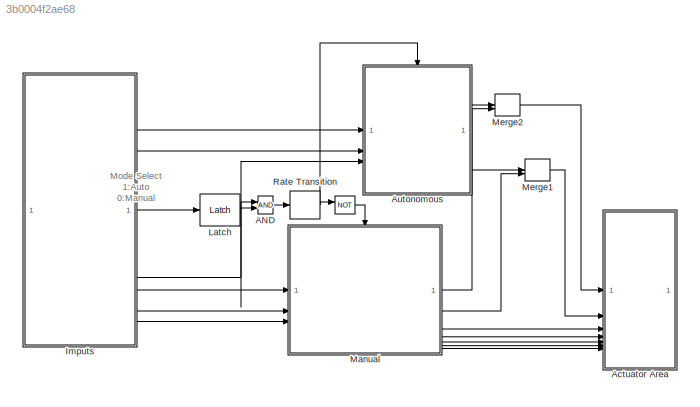
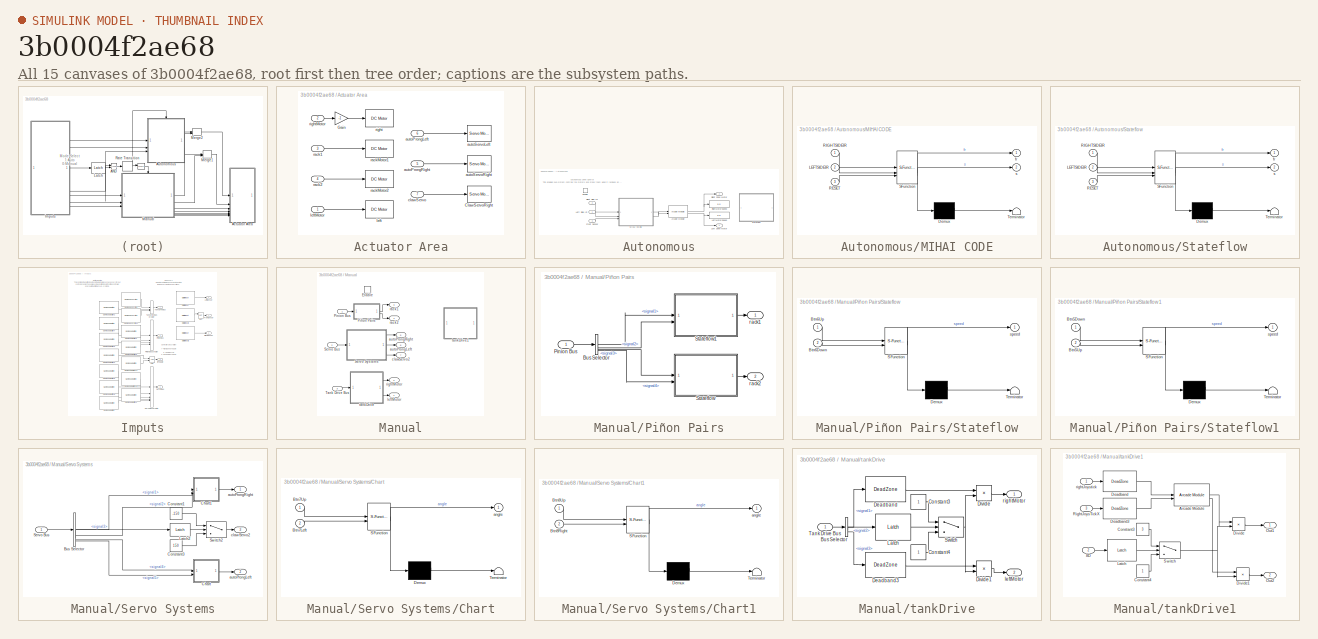
[diagram: thumbnail index - all 15 canvases of the model, root first then tree order]
MODEL slx_3b0004f2ae68
KIND model
CONFIG AbsTol = auto
CONFIG EnableMultiTasking = off
CONFIG FixedStep = auto
CONFIG MaxStep = auto
CONFIG MinStep = auto
CONFIG RelTol = 1e-3
CONFIG SampleTimeConstraint = Unconstrained
CONFIG SolverName = VariableStepAuto
CONFIG StartTime = 0.0
CONFIG StopTime = 10.0
BLOCK [Logic]  
  AllPortsSameDT = off
  IconShape = distinctive
  Operator = NOT
  OutDataTypeStr = boolean
BLOCK [Logic] AND
  AllPortsSameDT = off
  IconShape = distinctive
  OutDataTypeStr = boolean
BLOCK [SubSystem] Actuator Area
BLOCK [Reference] Actuator Area/ClawServoRight  REF=vexarmcortexlib/Actuators/Servo Motor
  SourceBlock = vexarmcortexlib/Actuators/Servo Motor
  SourceType = Servo Motor
BLOCK [Gain] Actuator Area/Gain
  Gain = -1
BLOCK [Inport] Actuator Area/autoProngLeft
  Port = 6
BLOCK [Inport] Actuator Area/autoProngRight
  Port = 5
BLOCK [Reference] Actuator Area/autoServoLeft  REF=vexarmcortexlib/Actuators/Servo Motor
  SourceBlock = vexarmcortexlib/Actuators/Servo Motor
  SourceType = Servo Motor
BLOCK [Reference] Actuator Area/autoServoRight  REF=vexarmcortexlib/Actuators/Servo Motor
  SourceBlock = vexarmcortexlib/Actuators/Servo Motor
  SourceType = Servo Motor
BLOCK [Inport] Actuator Area/clawServo
  Port = 7
BLOCK [Reference] Actuator Area/left  REF=vexarmcortexlib/Actuators/DC Motor
  SourceBlock = vexarmcortexlib/Actuators/DC Motor
  SourceType = DC Motor
BLOCK [Inport] Actuator Area/leftMotor
BLOCK [Inport] Actuator Area/rack1
  Port = 3
BLOCK [Inport] Actuator Area/rack2
  Port = 4
BLOCK [Reference] Actuator Area/rackMotor1  REF=vexarmcortexlib/Actuators/DC Motor
  SourceBlock = vexarmcortexlib/Actuators/DC Motor
  SourceType = DC Motor
BLOCK [Reference] Actuator Area/rackMotor2  REF=vexarmcortexlib/Actuators/DC Motor
  SourceBlock = vexarmcortexlib/Actuators/DC Motor
  SourceType = DC Motor
BLOCK [Reference] Actuator Area/right  REF=vexarmcortexlib/Actuators/DC Motor
  SourceBlock = vexarmcortexlib/Actuators/DC Motor
  SourceType = DC Motor
BLOCK [Inport] Actuator Area/rightMotor
  Port = 2
BLOCK [SubSystem] Autonomous
  TreatAsAtomicUnit = on
BLOCK [Reference] Autonomous/Arcade Module  REF=vexcommonlib/Arcade Module
  SourceBlock = vexcommonlib/Arcade Module
  SourceType = Arcade-2 Motors Module
BLOCK [EnablePort] Autonomous/Enable
  StatesWhenEnabling = reset
BLOCK [Inport] Autonomous/Front Sensor
  Port = 3
BLOCK [Outport] Autonomous/Left Drive Motor
BLOCK [Inport] Autonomous/Left Side IR
BLOCK [Display] Autonomous/LeftMotorSpeed
  Decimation = 1
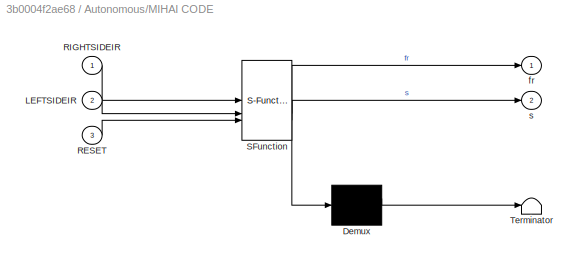
BLOCK [SubSystem] Autonomous/MIHAI CODE
  ErrorFcn = Stateflow.Translate.translate
  PermitHierarchicalResolution = ExplicitOnly
  SFBlockType = Chart
  TreatAsAtomicUnit = on
BLOCK [Demux] Autonomous/MIHAI CODE/ Demux 
  Outputs = 1
BLOCK [S-Function] Autonomous/MIHAI CODE/ SFunction 
  EnableBusSupport = on
  FunctionName = sf_sfun
  PortCounts = [3 3]
  SFcnIsStateOwnerBlock = off
  SFunctionDeploymentMode = off
  Tag = Stateflow S-Function 2
BLOCK [Terminator] Autonomous/MIHAI CODE/ Terminator 
BLOCK [Inport] Autonomous/MIHAI CODE/LEFTSIDEIR
  Port = 2
BLOCK [Inport] Autonomous/MIHAI CODE/RESET
  Port = 3
BLOCK [Inport] Autonomous/MIHAI CODE/RIGHTSIDEIR
BLOCK [Outport] Autonomous/MIHAI CODE/fr
BLOCK [Outport] Autonomous/MIHAI CODE/s
  Port = 2
BLOCK [Outport] Autonomous/Right Drive Motor
  Port = 2
BLOCK [Inport] Autonomous/Right Side IR
  Port = 2
BLOCK [Display] Autonomous/RightMotorSpeed
  Decimation = 1
BLOCK [SubSystem] Autonomous/Stateflow
  Commented = on
  ErrorFcn = Stateflow.Translate.translate
  PermitHierarchicalResolution = ExplicitOnly
  SFBlockType = Chart
  TreatAsAtomicUnit = on
BLOCK [Demux] Autonomous/Stateflow/ Demux 
  Outputs = 1
BLOCK [S-Function] Autonomous/Stateflow/ SFunction 
  EnableBusSupport = on
  FunctionName = sf_sfun
  PortCounts = [3 3]
  SFcnIsStateOwnerBlock = off
  SFunctionDeploymentMode = off
  Tag = Stateflow S-Function 8
BLOCK [Terminator] Autonomous/Stateflow/ Terminator 
BLOCK [Inport] Autonomous/Stateflow/LEFTSIDEIR
  Port = 2
BLOCK [Inport] Autonomous/Stateflow/RESET
  Port = 3
BLOCK [Inport] Autonomous/Stateflow/RIGHTSIDEIR
BLOCK [Outport] Autonomous/Stateflow/fr
BLOCK [Outport] Autonomous/Stateflow/s
  Port = 2
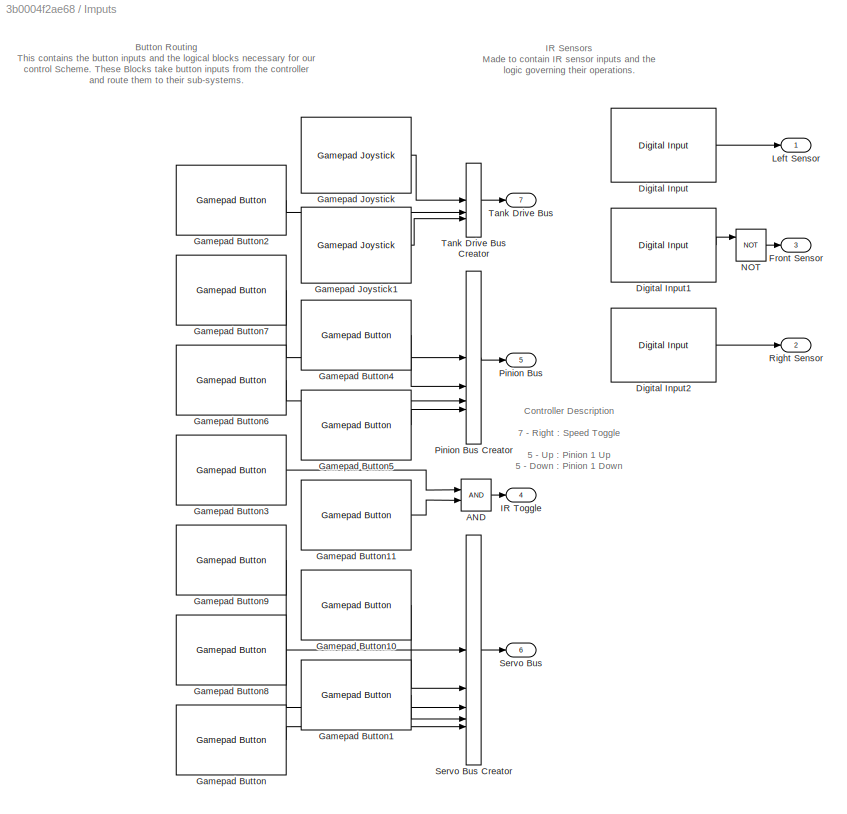
BLOCK [SubSystem] Imputs
BLOCK [Logic] Imputs/AND
  AllPortsSameDT = off
  IconShape = distinctive
  OutDataTypeStr = boolean
BLOCK [Reference] Imputs/Digital Input  REF=vexarmcortexlib/Sensors/Digital Input
  SourceBlock = vexarmcortexlib/Sensors/Digital Input
  SourceType = Digital Input
BLOCK [Reference] Imputs/Digital Input1  REF=vexarmcortexlib/Sensors/Digital Input
  SourceBlock = vexarmcortexlib/Sensors/Digital Input
  SourceType = Digital Input
BLOCK [Reference] Imputs/Digital Input2  REF=vexarmcortexlib/Sensors/Digital Input
  SourceBlock = vexarmcortexlib/Sensors/Digital Input
  SourceType = Digital Input
BLOCK [Outport] Imputs/Front Sensor
  Port = 3
BLOCK [Reference] Imputs/Gamepad Button  REF=vexarmcortexlib/Gamepad/Gamepad Button
  SourceBlock = vexarmcortexlib/Gamepad/Gamepad Button
  SourceType = Gamepad Button
BLOCK [Reference] Imputs/Gamepad Button1  REF=vexarmcortexlib/Gamepad/Gamepad Button
  SourceBlock = vexarmcortexlib/Gamepad/Gamepad Button
  SourceType = Gamepad Button
BLOCK [Reference] Imputs/Gamepad Button10  REF=vexarmcortexlib/Gamepad/Gamepad Button
  SourceBlock = vexarmcortexlib/Gamepad/Gamepad Button
  SourceType = Gamepad Button
BLOCK [Reference] Imputs/Gamepad Button11  REF=vexarmcortexlib/Gamepad/Gamepad Button
  SourceBlock = vexarmcortexlib/Gamepad/Gamepad Button
  SourceType = Gamepad Button
BLOCK [Reference] Imputs/Gamepad Button2  REF=vexarmcortexlib/Gamepad/Gamepad Button
  SourceBlock = vexarmcortexlib/Gamepad/Gamepad Button
  SourceType = Gamepad Button
BLOCK [Reference] Imputs/Gamepad Button3  REF=vexarmcortexlib/Gamepad/Gamepad Button
  SourceBlock = vexarmcortexlib/Gamepad/Gamepad Button
  SourceType = Gamepad Button
BLOCK [Reference] Imputs/Gamepad Button4  REF=vexarmcortexlib/Gamepad/Gamepad Button
  SourceBlock = vexarmcortexlib/Gamepad/Gamepad Button
  SourceType = Gamepad Button
BLOCK [Reference] Imputs/Gamepad Button5  REF=vexarmcortexlib/Gamepad/Gamepad Button
  SourceBlock = vexarmcortexlib/Gamepad/Gamepad Button
  SourceType = Gamepad Button
BLOCK [Reference] Imputs/Gamepad Button6  REF=vexarmcortexlib/Gamepad/Gamepad Button
  SourceBlock = vexarmcortexlib/Gamepad/Gamepad Button
  SourceType = Gamepad Button
BLOCK [Reference] Imputs/Gamepad Button7  REF=vexarmcortexlib/Gamepad/Gamepad Button
  SourceBlock = vexarmcortexlib/Gamepad/Gamepad Button
  SourceType = Gamepad Button
BLOCK [Reference] Imputs/Gamepad Button8  REF=vexarmcortexlib/Gamepad/Gamepad Button
  SourceBlock = vexarmcortexlib/Gamepad/Gamepad Button
  SourceType = Gamepad Button
BLOCK [Reference] Imputs/Gamepad Button9  REF=vexarmcortexlib/Gamepad/Gamepad Button
  SourceBlock = vexarmcortexlib/Gamepad/Gamepad Button
  SourceType = Gamepad Button
BLOCK [Reference] Imputs/Gamepad Joystick  REF=vexarmcortexlib/Gamepad/Gamepad Joystick
  SourceBlock = vexarmcortexlib/Gamepad/Gamepad Joystick
  SourceType = Gamepad Joystick
BLOCK [Reference] Imputs/Gamepad Joystick1  REF=vexarmcortexlib/Gamepad/Gamepad Joystick
  SourceBlock = vexarmcortexlib/Gamepad/Gamepad Joystick
  SourceType = Gamepad Joystick
BLOCK [Outport] Imputs/IR Toggle
  Port = 4
BLOCK [Outport] Imputs/Left Sensor
BLOCK [Logic] Imputs/NOT
  AllPortsSameDT = off
  IconShape = distinctive
  Inputs = 3
  Operator = NOT
  OutDataTypeStr = boolean
BLOCK [Outport] Imputs/Pinion Bus
  Port = 5
BLOCK [BusCreator] Imputs/Pinion Bus Creator
  DisplayOption = bar
  InheritFromInputs = on
  Inputs = 4
BLOCK [Outport] Imputs/Right Sensor
  Port = 2
BLOCK [Outport] Imputs/Servo Bus
  Port = 6
BLOCK [BusCreator] Imputs/Servo Bus Creator
  DisplayOption = bar
  InheritFromInputs = on
  Inputs = 5
BLOCK [Outport] Imputs/Tank Drive Bus
  Port = 7
BLOCK [BusCreator] Imputs/Tank Drive Bus Creator
  DisplayOption = bar
  InheritFromInputs = on
  Inputs = 3
BLOCK [Reference] Latch  REF=vexcommonlib/Latch
  SourceBlock = vexcommonlib/Latch
  SourceType = Latch
BLOCK [SubSystem] Manual
  TreatAsAtomicUnit = on
BLOCK [EnablePort] Manual/Enable
BLOCK [Inport] Manual/Pinion Bus
BLOCK [SubSystem] Manual/Piñon Pairs
BLOCK [BusSelector] Manual/Piñon Pairs/Bus Selector
  OutputSignals = signal1,signal2,signal3,signal4
BLOCK [Inport] Manual/Piñon Pairs/Pinion Bus
BLOCK [SubSystem] Manual/Piñon Pairs/Stateflow
  ErrorFcn = Stateflow.Translate.translate
  PermitHierarchicalResolution = ExplicitOnly
  SFBlockType = Chart
  TreatAsAtomicUnit = on
BLOCK [Demux] Manual/Piñon Pairs/Stateflow/ Demux 
  Outputs = 1
BLOCK [S-Function] Manual/Piñon Pairs/Stateflow/ SFunction 
  EnableBusSupport = on
  FunctionName = sf_sfun
  PortCounts = [2 2]
  SFcnIsStateOwnerBlock = off
  SFunctionDeploymentMode = off
  Tag = Stateflow S-Function 4
BLOCK [Terminator] Manual/Piñon Pairs/Stateflow/ Terminator 
BLOCK [Inport] Manual/Piñon Pairs/Stateflow/Btn6Down
  Port = 2
BLOCK [Inport] Manual/Piñon Pairs/Stateflow/Btn6Up
BLOCK [Outport] Manual/Piñon Pairs/Stateflow/speed
BLOCK [SubSystem] Manual/Piñon Pairs/Stateflow1
  ErrorFcn = Stateflow.Translate.translate
  PermitHierarchicalResolution = ExplicitOnly
  SFBlockType = Chart
  TreatAsAtomicUnit = on
BLOCK [Demux] Manual/Piñon Pairs/Stateflow1/ Demux 
  Outputs = 1
BLOCK [S-Function] Manual/Piñon Pairs/Stateflow1/ SFunction 
  EnableBusSupport = on
  FunctionName = sf_sfun
  PortCounts = [2 2]
  SFcnIsStateOwnerBlock = off
  SFunctionDeploymentMode = off
  Tag = Stateflow S-Function 5
BLOCK [Terminator] Manual/Piñon Pairs/Stateflow1/ Terminator 
BLOCK [Inport] Manual/Piñon Pairs/Stateflow1/Btn5Down
BLOCK [Inport] Manual/Piñon Pairs/Stateflow1/Btn5Up
  Port = 2
BLOCK [Outport] Manual/Piñon Pairs/Stateflow1/speed
BLOCK [Outport] Manual/Piñon Pairs/rack1
BLOCK [Outport] Manual/Piñon Pairs/rack2
  Port = 2
BLOCK [Inport] Manual/Servo Bus
  Port = 2
BLOCK [SubSystem] Manual/Servo Systems
BLOCK [BusSelector] Manual/Servo Systems/Bus Selector
  OutputSignals = signal1,signal2,signal3,signal4,signal5
BLOCK [SubSystem] Manual/Servo Systems/Chart
  ErrorFcn = Stateflow.Translate.translate
  PermitHierarchicalResolution = ExplicitOnly
  SFBlockType = Chart
  TreatAsAtomicUnit = on
BLOCK [Demux] Manual/Servo Systems/Chart/ Demux 
  Outputs = 1
BLOCK [S-Function] Manual/Servo Systems/Chart/ SFunction 
  EnableBusSupport = on
  FunctionName = sf_sfun
  PortCounts = [2 2]
  SFcnIsStateOwnerBlock = off
  SFunctionDeploymentMode = off
  Tag = Stateflow S-Function 3
BLOCK [Terminator] Manual/Servo Systems/Chart/ Terminator 
BLOCK [Inport] Manual/Servo Systems/Chart/Btn7Left
  Port = 2
BLOCK [Inport] Manual/Servo Systems/Chart/Btn7Up
BLOCK [Outport] Manual/Servo Systems/Chart/angle
BLOCK [SubSystem] Manual/Servo Systems/Chart1
  ErrorFcn = Stateflow.Translate.translate
  PermitHierarchicalResolution = ExplicitOnly
  SFBlockType = Chart
  TreatAsAtomicUnit = on
BLOCK [Demux] Manual/Servo Systems/Chart1/ Demux 
  Outputs = 1
BLOCK [S-Function] Manual/Servo Systems/Chart1/ SFunction 
  EnableBusSupport = on
  FunctionName = sf_sfun
  PortCounts = [2 2]
  SFcnIsStateOwnerBlock = off
  SFunctionDeploymentMode = off
  Tag = Stateflow S-Function 1
BLOCK [Terminator] Manual/Servo Systems/Chart1/ Terminator 
BLOCK [Inport] Manual/Servo Systems/Chart1/Btn8Right
  Port = 2
BLOCK [Inport] Manual/Servo Systems/Chart1/Btn8Up
BLOCK [Outport] Manual/Servo Systems/Chart1/angle
BLOCK [Constant] Manual/Servo Systems/Constant1
  Value = -150
BLOCK [Constant] Manual/Servo Systems/Constant3
  Value = 150
BLOCK [Reference] Manual/Servo Systems/Latch2  REF=vexcommonlib/Latch
  LibrarySourceBlock = vexarmcortexlib/Utilities/Latch
  SourceBlock = vexcommonlib/Latch
  SourceType = Latch
BLOCK [Inport] Manual/Servo Systems/Servo Bus
BLOCK [Switch] Manual/Servo Systems/Switch2
  Criteria = u2 > Threshold
  InputSameDT = off
  SaturateOnIntegerOverflow = off
BLOCK [Outport] Manual/Servo Systems/autoProngLeft
  Port = 2
BLOCK [Outport] Manual/Servo Systems/autoProngRight
BLOCK [Outport] Manual/Servo Systems/clawServo2
  Port = 3
BLOCK [Inport] Manual/Tank Drive Bus
  Port = 3
BLOCK [Outport] Manual/autoProngLeft
  Port = 6
BLOCK [Outport] Manual/autoProngRight
  Port = 5
BLOCK [Outport] Manual/clawServo2
  Port = 7
BLOCK [Outport] Manual/leftMotor
BLOCK [Outport] Manual/rack1
  Port = 3
BLOCK [Outport] Manual/rack2
  Port = 4
BLOCK [Outport] Manual/rightMotor
  Port = 2
BLOCK [SubSystem] Manual/tankDrive
BLOCK [BusSelector] Manual/tankDrive/Bus Selector
  OutputSignals = signal1,signal2,signal3
BLOCK [Constant] Manual/tankDrive/Constant3
BLOCK [Constant] Manual/tankDrive/Constant4
BLOCK [DeadZone] Manual/tankDrive/Deadband
  LowerValue = -9
  UpperValue = 9
BLOCK [DeadZone] Manual/tankDrive/Deadband3
  LowerValue = -9
  UpperValue = 9
BLOCK [Product] Manual/tankDrive/Divide
  Inputs = */
BLOCK [Product] Manual/tankDrive/Divide1
  Inputs = */
BLOCK [Reference] Manual/tankDrive/Latch  REF=vexcommonlib/Latch
  LibrarySourceBlock = vexarmcortexlib/Utilities/Latch
  SourceBlock = vexcommonlib/Latch
  SourceType = Latch
BLOCK [Switch] Manual/tankDrive/Switch
  Criteria = u2 > Threshold
  InputSameDT = off
  SaturateOnIntegerOverflow = off
BLOCK [Inport] Manual/tankDrive/Tank Drive Bus
BLOCK [Outport] Manual/tankDrive/leftMotor
  Port = 2
BLOCK [Outport] Manual/tankDrive/rightMotor
BLOCK [SubSystem] Manual/tankDrive1
  Commented = on
BLOCK [Inport] Manual/tankDrive1/8D 
  Port = 2
BLOCK [Reference] Manual/tankDrive1/Arcade Module  REF=vexcommonlib/Arcade Module
  SourceBlock = vexcommonlib/Arcade Module
  SourceType = Arcade-2 Motors Module
BLOCK [Constant] Manual/tankDrive1/Constant3
  Value = 3
BLOCK [Constant] Manual/tankDrive1/Constant4
BLOCK [DeadZone] Manual/tankDrive1/Deadband
  LowerValue = -9
  UpperValue = 9
BLOCK [DeadZone] Manual/tankDrive1/Deadband3
  LowerValue = -9
  UpperValue = 9
BLOCK [Product] Manual/tankDrive1/Divide
  Inputs = */
BLOCK [Product] Manual/tankDrive1/Divide1
  Inputs = */
BLOCK [Reference] Manual/tankDrive1/Latch  REF=vexcommonlib/Latch
  LibrarySourceBlock = vexarmcortexlib/Utilities/Latch
  SourceBlock = vexcommonlib/Latch
  SourceType = Latch
BLOCK [Outport] Manual/tankDrive1/Out1
BLOCK [Outport] Manual/tankDrive1/Out2
  Port = 2
BLOCK [Inport] Manual/tankDrive1/RightJoysTickX
  Port = 3
BLOCK [Switch] Manual/tankDrive1/Switch
  Criteria = u2 > Threshold
  InputSameDT = off
  SaturateOnIntegerOverflow = off
BLOCK [Inport] Manual/tankDrive1/rightJoystick
BLOCK [Merge] Merge1
BLOCK [Merge] Merge2
BLOCK [RateTransition] Rate Transition
ANNOTATION (root): Manual Subsystem This contains the pieces
ANNOTATION (root): Mode Select 1:Auto 0:Manual
ANNOTATION Autonomous: Autonomous Drive Control This enabled sub-system controls the motors and stops them when it receives an input of 0 from the Front IR sensor.
ANNOTATION Imputs: Button Routing This contains the button inputs and the logical blocks necessary for our control Scheme. These Blocks take button inputs from the controller and route them to their sub-systems.
ANNOTATION Imputs: Controller Description 7 - Right : Speed Toggle 5 - Up : Pinion 1 Up 5 - Down : Pinion 1 Down 6 - Up : Pinion 2 Up 6 - Down : Pinion 2 Down 7 - Down : Auto Toggle 8 - Down : Auto Toggle 8 - Up :
ANNOTATION Imputs: IR Sensors Made to contain IR sensor inputs and the logic governing their operations.
LINE  :1 -> Manual:enable
LINE AND:1 -> Rate Transition:1
LINE Actuator Area/Gain:1 -> Actuator Area/right:1
LINE Actuator Area/autoProngLeft:1 -> Actuator Area/autoServoLeft:1
LINE Actuator Area/autoProngRight:1 -> Actuator Area/autoServoRight:1
LINE Actuator Area/clawServo:1 -> Actuator Area/ClawServoRight:1
LINE Actuator Area/leftMotor:1 -> Actuator Area/left:1
LINE Actuator Area/rack1:1 -> Actuator Area/rackMotor1:1
LINE Actuator Area/rack2:1 -> Actuator Area/rackMotor2:1
LINE Actuator Area/rightMotor:1 -> Actuator Area/Gain:1
NET Autonomous/Arcade Module:1 -> Autonomous/Right Drive Motor:1, Autonomous/RightMotorSpeed:1
NET Autonomous/Arcade Module:2 -> Autonomous/Left Drive Motor:1, Autonomous/LeftMotorSpeed:1
LINE Autonomous/Front Sensor:1 -> Autonomous/MIHAI CODE:3
LINE Autonomous/Left Side IR:1 -> Autonomous/MIHAI CODE:2
LINE Autonomous/MIHAI CODE:1 -> Autonomous/Arcade Module:1
LINE Autonomous/MIHAI CODE:2 -> Autonomous/Arcade Module:2
LINE Autonomous/Right Side IR:1 -> Autonomous/MIHAI CODE:1
LINE Autonomous:1 -> Merge2:1
LINE Autonomous:2 -> Merge1:1
LINE Imputs/AND:1 -> Imputs/IR Toggle:1
LINE Imputs/Digital Input1:1 -> Imputs/NOT:1
LINE Imputs/Digital Input2:1 -> Imputs/Right Sensor:1
LINE Imputs/Digital Input:1 -> Imputs/Left Sensor:1
LINE Imputs/Gamepad Button10:1 -> Imputs/Servo Bus Creator:2
LINE Imputs/Gamepad Button11:1 -> Imputs/AND:2
LINE Imputs/Gamepad Button1:1 -> Imputs/Servo Bus Creator:4
LINE Imputs/Gamepad Button2:1 -> Imputs/Tank Drive Bus Creator:2
LINE Imputs/Gamepad Button3:1 -> Imputs/AND:1
LINE Imputs/Gamepad Button4:1 -> Imputs/Pinion Bus Creator:2
LINE Imputs/Gamepad Button5:1 -> Imputs/Pinion Bus Creator:4
LINE Imputs/Gamepad Button6:1 -> Imputs/Pinion Bus Creator:3
LINE Imputs/Gamepad Button7:1 -> Imputs/Pinion Bus Creator:1
LINE Imputs/Gamepad Button8:1 -> Imputs/Servo Bus Creator:3
LINE Imputs/Gamepad Button9:1 -> Imputs/Servo Bus Creator:1
LINE Imputs/Gamepad Button:1 -> Imputs/Servo Bus Creator:5
LINE Imputs/Gamepad Joystick1:1 -> Imputs/Tank Drive Bus Creator:3
LINE Imputs/Gamepad Joystick:1 -> Imputs/Tank Drive Bus Creator:1
LINE Imputs/NOT:1 -> Imputs/Front Sensor:1
LINE Imputs/Pinion Bus Creator:1 -> Imputs/Pinion Bus:1
LINE Imputs/Servo Bus Creator:1 -> Imputs/Servo Bus:1
LINE Imputs/Tank Drive Bus Creator:1 -> Imputs/Tank Drive Bus:1
LINE Imputs:1 -> Autonomous:1
LINE Imputs:2 -> Autonomous:2
NET Imputs:3 -> AND:1, Autonomous:3
LINE Imputs:4 -> Latch:1
LINE Imputs:5 -> Manual:1
LINE Imputs:6 -> Manual:2
LINE Imputs:7 -> Manual:3
LINE Latch:1 -> AND:2
LINE Manual/Pinion Bus:1 -> Manual/Piñon Pairs:1
LINE Manual/Piñon Pairs/Bus Selector:1 -> Manual/Piñon Pairs/Stateflow1:1
LINE Manual/Piñon Pairs/Bus Selector:2 -> Manual/Piñon Pairs/Stateflow1:2
LINE Manual/Piñon Pairs/Bus Selector:3 -> Manual/Piñon Pairs/Stateflow:1
LINE Manual/Piñon Pairs/Bus Selector:4 -> Manual/Piñon Pairs/Stateflow:2
LINE Manual/Piñon Pairs/Pinion Bus:1 -> Manual/Piñon Pairs/Bus Selector:1
LINE Manual/Piñon Pairs/Stateflow1:1 -> Manual/Piñon Pairs/rack1:1
LINE Manual/Piñon Pairs/Stateflow:1 -> Manual/Piñon Pairs/rack2:1
LINE Manual/Piñon Pairs:1 -> Manual/rack1:1
LINE Manual/Piñon Pairs:2 -> Manual/rack2:1
LINE Manual/Servo Bus:1 -> Manual/Servo Systems:1
LINE Manual/Servo Systems/Bus Selector:1 -> Manual/Servo Systems/Chart1:1
LINE Manual/Servo Systems/Bus Selector:2 -> Manual/Servo Systems/Chart1:2
LINE Manual/Servo Systems/Bus Selector:3 -> Manual/Servo Systems/Latch2:1
LINE Manual/Servo Systems/Bus Selector:4 -> Manual/Servo Systems/Chart:1
LINE Manual/Servo Systems/Bus Selector:5 -> Manual/Servo Systems/Chart:2
LINE Manual/Servo Systems/Chart1:1 -> Manual/Servo Systems/autoProngRight:1
LINE Manual/Servo Systems/Chart:1 -> Manual/Servo Systems/autoProngLeft:1
LINE Manual/Servo Systems/Constant1:1 -> Manual/Servo Systems/Switch2:1
LINE Manual/Servo Systems/Constant3:1 -> Manual/Servo Systems/Switch2:3
LINE Manual/Servo Systems/Latch2:1 -> Manual/Servo Systems/Switch2:2
LINE Manual/Servo Systems/Servo Bus:1 -> Manual/Servo Systems/Bus Selector:1
LINE Manual/Servo Systems/Switch2:1 -> Manual/Servo Systems/clawServo2:1
LINE Manual/Servo Systems:1 -> Manual/autoProngRight:1
LINE Manual/Servo Systems:2 -> Manual/autoProngLeft:1
LINE Manual/Servo Systems:3 -> Manual/clawServo2:1
LINE Manual/Tank Drive Bus:1 -> Manual/tankDrive:1
LINE Manual/tankDrive/Bus Selector:1 -> Manual/tankDrive/Deadband:1
LINE Manual/tankDrive/Bus Selector:2 -> Manual/tankDrive/Latch:1
LINE Manual/tankDrive/Bus Selector:3 -> Manual/tankDrive/Deadband3:1
LINE Manual/tankDrive/Constant3:1 -> Manual/tankDrive/Switch:1
LINE Manual/tankDrive/Constant4:1 -> Manual/tankDrive/Switch:3
LINE Manual/tankDrive/Deadband3:1 -> Manual/tankDrive/Divide1:1
LINE Manual/tankDrive/Deadband:1 -> Manual/tankDrive/Divide:1
LINE Manual/tankDrive/Divide1:1 -> Manual/tankDrive/leftMotor:1
LINE Manual/tankDrive/Divide:1 -> Manual/tankDrive/rightMotor:1
LINE Manual/tankDrive/Latch:1 -> Manual/tankDrive/Switch:2
NET Manual/tankDrive/Switch:1 -> Manual/tankDrive/Divide1:2, Manual/tankDrive/Divide:2
LINE Manual/tankDrive/Tank Drive Bus:1 -> Manual/tankDrive/Bus Selector:1
LINE Manual/tankDrive1/8D :1 -> Manual/tankDrive1/Latch:1
LINE Manual/tankDrive1/Arcade Module:1 -> Manual/tankDrive1/Divide:1
LINE Manual/tankDrive1/Arcade Module:2 -> Manual/tankDrive1/Divide1:1
LINE Manual/tankDrive1/Constant3:1 -> Manual/tankDrive1/Switch:1
LINE Manual/tankDrive1/Constant4:1 -> Manual/tankDrive1/Switch:3
LINE Manual/tankDrive1/Deadband3:1 -> Manual/tankDrive1/Arcade Module:2
LINE Manual/tankDrive1/Deadband:1 -> Manual/tankDrive1/Arcade Module:1
LINE Manual/tankDrive1/Divide1:1 -> Manual/tankDrive1/Out2:1
LINE Manual/tankDrive1/Divide:1 -> Manual/tankDrive1/Out1:1
LINE Manual/tankDrive1/Latch:1 -> Manual/tankDrive1/Switch:2
LINE Manual/tankDrive1/RightJoysTickX:1 -> Manual/tankDrive1/Deadband3:1
NET Manual/tankDrive1/Switch:1 -> Manual/tankDrive1/Divide1:2, Manual/tankDrive1/Divide:2
LINE Manual/tankDrive1/rightJoystick:1 -> Manual/tankDrive1/Deadband:1
LINE Manual/tankDrive:1 -> Manual/rightMotor:1
LINE Manual/tankDrive:2 -> Manual/leftMotor:1
LINE Manual:1 -> Merge2:2
LINE Manual:2 -> Merge1:2
LINE Manual:3 -> Actuator Area:3
LINE Manual:4 -> Actuator Area:4
LINE Manual:5 -> Actuator Area:5
LINE Manual:6 -> Actuator Area:6
LINE Manual:7 -> Actuator Area:7
LINE Merge1:1 -> Actuator Area:2
LINE Merge2:1 -> Actuator Area:1
NET Rate Transition:1 ->  :1, Autonomous:enable
note: NET lines group one-source signal fan-out (src -> all destinations, sorted); 1:1 wires keep LINE
CHART Manual/Servo Systems/Chart states=4 transitions=8
  STATE_LABEL 'neutral\nangle=3;'
  STATE_LABEL 'buffer\nangle=3;'
  STATE_LABEL 'negative90\nangle=-40;'
  STATE_LABEL 'positive90\nangle=50;'
CHART Manual/Piñon Pairs/Stateflow states=3 transitions=7
  STATE_LABEL 'rackIN\nentry:\nspeed=-127;'
  STATE_LABEL 'STOPPED\nentry:\nspeed=20;'
  STATE_LABEL 'rackOUT\nentry:\nspeed=127;\n'
CHART Manual/Piñon Pairs/Stateflow1 states=3 transitions=7
  STATE_LABEL 'rackIN\nentry:\nspeed=-127;'
  STATE_LABEL 'STOPPED\nentry:\nspeed=0;'
  STATE_LABEL 'rackOUT\nentry:\nspeed=127;\n'
CHART Autonomous/Stateflow states=4 transitions=13
  STATE_LABEL 'STRAIGHT\nentry:\nfr = 127;\ns = 0;\n'
  STATE_LABEL 'GO_RIGHT\nentry:\nfr = 127;\ns = -100;\n'
  STATE_LABEL 'GO_LEFT\nentry:\nfr = 127;\ns = 100;\n'
  STATE_LABEL 'STOP\nentry:\nfr = 0;\ns = 0;\n'
CHART Manual/Servo Systems/Chart1 states=4 transitions=8
  STATE_LABEL 'neutral\nangle=0;'
  STATE_LABEL 'buffer\nangle=0;'
  STATE_LABEL 'negative90\nangle=-30;'
  STATE_LABEL 'positive90\nangle=50;'
CHART Autonomous/MIHAI CODE states=4 transitions=13
  STATE_LABEL 'STRAIGHT\nentry:\nfr = 110;\ns = 0;\n'
  STATE_LABEL 'GO_RIGHT\nentry:\nfr = 90;\ns = -110;\n'
  STATE_LABEL 'GO_LEFT\nentry:\nfr = 90;\ns = 110;\n'
  STATE_LABEL 'STOP\nentry:\nfr = 0;\ns = 0;\n'
CHART  states=0 transitions=0
CHART  states=0 transitions=0
CHART  states=0 transitions=0
CHART  states=0 transitions=0
CHART  states=0 transitions=0
CHART  states=0 transitions=0
